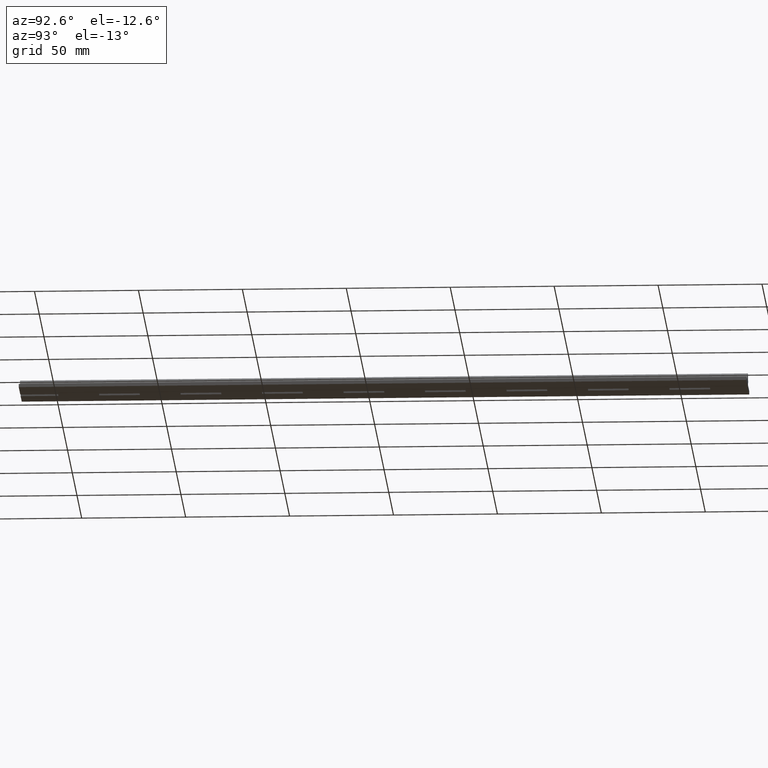
[diagram: clean part render]
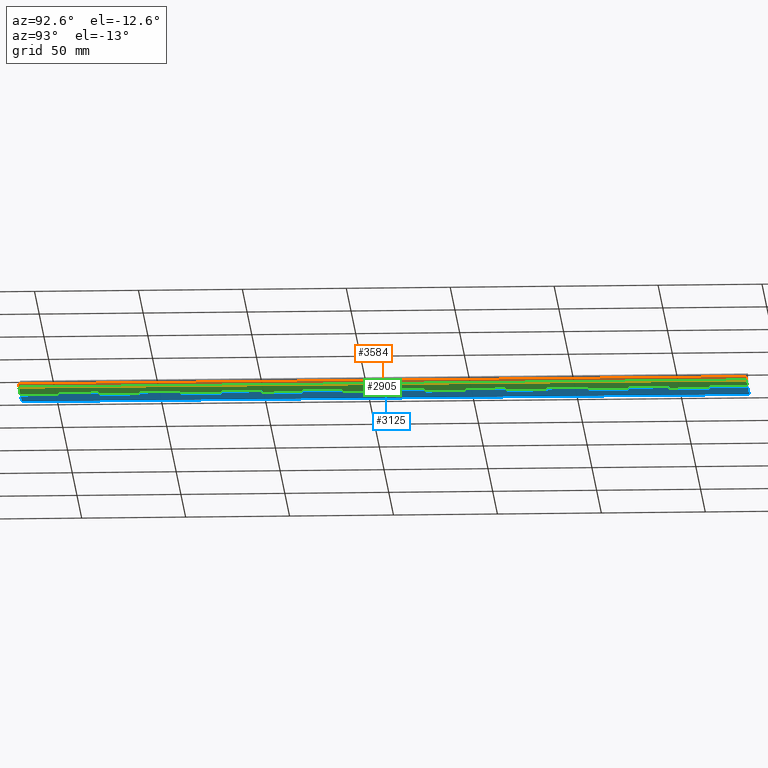
[diagram: same view with three faces highlighted in distinct colors, each labeled with its STEP entity id]
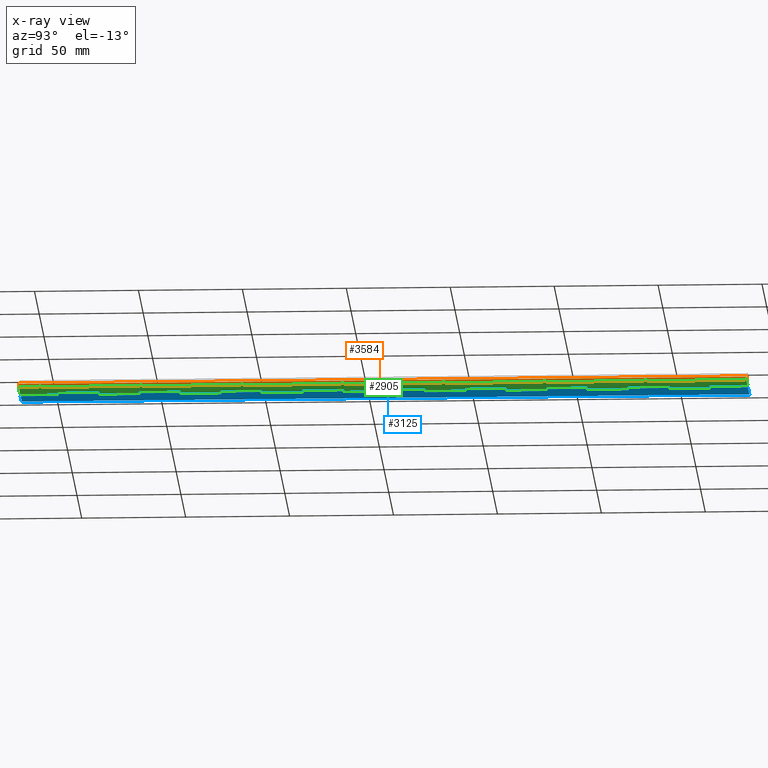
[diagram: x-ray of the same camera — body ghosted, the three highlighted faces saturated]
A machine part, auxiliary view with three faces highlighted in distinct colors.
The next image is the same camera in x-ray (body ghosted, the three faces saturated) — at least one of them is partly hidden behind the body in this view.
Their STEP definitions:

[orange] entity #3584 — the highlighted planar face has unit normal (-1, 0, 0).
#44 = EDGE_LOOP ( 'NONE', ( #2605, #1725, #3276, #336 ) ) ;
#128 = CARTESIAN_POINT ( 'NONE',  ( 16.00000000000000000, -18.19999999999999900, -1.750002187502757400 ) ) ;
#287 = VERTEX_POINT ( 'NONE', #128 ) ;
#336 = ORIENTED_EDGE ( 'NONE', *, *, #1568, .F. ) ;
#420 = CARTESIAN_POINT ( 'NONE',  ( 16.00000000000000000, 313.6000000000000200, -1.750002187502757400 ) ) ;
#567 = LINE ( 'NONE', #627, #1544 ) ;
#627 = CARTESIAN_POINT ( 'NONE',  ( 16.00000000000000000, -18.19999999999999900, -3.350002187502757700 ) ) ;
#699 = VERTEX_POINT ( 'NONE', #920 ) ;
#727 = CARTESIAN_POINT ( 'NONE',  ( 16.00000000000000000, 331.8000000000000100, -1.750002187502757400 ) ) ;
#859 = VERTEX_POINT ( 'NONE', #3203 ) ;
#920 = CARTESIAN_POINT ( 'NONE',  ( 16.00000000000000000, 331.8000000000000100, -1.750002187502757400 ) ) ;
#1122 = VECTOR ( 'NONE', #2980, 1000.000000000000000 ) ;
#1220 = LINE ( 'NONE', #420, #1122 ) ;
#1230 = DIRECTION ( 'NONE',  ( 0.0000000000000000000, 0.0000000000000000000, -1.000000000000000000 ) ) ;
#1247 = PLANE ( 'NONE',  #3943 ) ;
#1544 = VECTOR ( 'NONE', #2262, 1000.000000000000000 ) ;
#1568 = EDGE_CURVE ( 'NONE', #699, #3604, #2170, .T. ) ;
#1603 = CARTESIAN_POINT ( 'NONE',  ( 16.00000000000000000, 331.8000000000000100, -3.350002187502757700 ) ) ;
#1725 = ORIENTED_EDGE ( 'NONE', *, *, #2575, .F. ) ;
#1861 = EDGE_CURVE ( 'NONE', #3604, #859, #2108, .T. ) ;
#1903 = DIRECTION ( 'NONE',  ( -1.000000000000000000, 0.0000000000000000000, 0.0000000000000000000 ) ) ;
#2034 = FACE_OUTER_BOUND ( 'NONE', #44, .T. ) ;
#2059 = CARTESIAN_POINT ( 'NONE',  ( 16.00000000000000000, 313.6000000000000200, -3.350002187502757700 ) ) ;
#2108 = LINE ( 'NONE', #2059, #3531 ) ;
#2170 = LINE ( 'NONE', #727, #2884 ) ;
#2262 = DIRECTION ( 'NONE',  ( 0.0000000000000000000, 0.0000000000000000000, 1.000000000000000000 ) ) ;
#2575 = EDGE_CURVE ( 'NONE', #859, #287, #567, .T. ) ;
#2605 = ORIENTED_EDGE ( 'NONE', *, *, #3069, .T. ) ;
#2884 = VECTOR ( 'NONE', #1230, 1000.000000000000000 ) ;
#2980 = DIRECTION ( 'NONE',  ( -0.0000000000000000000, -1.000000000000000000, -0.0000000000000000000 ) ) ;
#3069 = EDGE_CURVE ( 'NONE', #699, #287, #1220, .T. ) ;
#3203 = CARTESIAN_POINT ( 'NONE',  ( 16.00000000000000000, -18.19999999999999900, -3.350002187502757700 ) ) ;
#3276 = ORIENTED_EDGE ( 'NONE', *, *, #1861, .F. ) ;
#3287 = DIRECTION ( 'NONE',  ( -0.0000000000000000000, -1.000000000000000000, -0.0000000000000000000 ) ) ;
#3531 = VECTOR ( 'NONE', #3287, 1000.000000000000000 ) ;
#3584 = ADVANCED_FACE ( 'NONE', ( #2034 ), #1247, .F. ) ;
#3604 = VERTEX_POINT ( 'NONE', #1603 ) ;
#3749 = CARTESIAN_POINT ( 'NONE',  ( 16.00000000000000000, 313.6000000000000200, -1.750002187502757400 ) ) ;
#3943 = AXIS2_PLACEMENT_3D ( 'NONE', #3749, #1903, #4062 ) ;
#4062 = DIRECTION ( 'NONE',  ( 0.0000000000000000000, 0.0000000000000000000, 1.000000000000000000 ) ) ;

[blue] entity #3125 — the highlighted planar face has unit normal (0, 0, 1).
#18 = EDGE_CURVE ( 'NONE', #2229, #3153, #1921, .T. ) ;
#24 = CARTESIAN_POINT ( 'NONE',  ( -3.999999824594461900, 313.6000000000000200, -3.350000000000000500 ) ) ;
#53 = ORIENTED_EDGE ( 'NONE', *, *, #475, .T. ) ;
#72 = EDGE_CURVE ( 'NONE', #767, #2229, #1720, .T. ) ;
#91 = CARTESIAN_POINT ( 'NONE',  ( -15.99999982459446300, 39.20000000000001000, -3.350000000000000500 ) ) ;
#94 = EDGE_CURVE ( 'NONE', #2302, #767, #3174, .T. ) ;
#124 = EDGE_CURVE ( 'NONE', #1674, #619, #641, .T. ) ;
#125 = DIRECTION ( 'NONE',  ( 1.000000000000000000, 0.0000000000000000000, 0.0000000000000000000 ) ) ;
#136 = CARTESIAN_POINT ( 'NONE',  ( 0.0000000000000000000, 313.6000000000000200, -3.350000000000000500 ) ) ;
#144 = DIRECTION ( 'NONE',  ( 1.000000000000000000, 0.0000000000000000000, -0.0000000000000000000 ) ) ;
#161 = VERTEX_POINT ( 'NONE', #839 ) ;
#198 = ORIENTED_EDGE ( 'NONE', *, *, #1257, .T. ) ;
#212 = VECTOR ( 'NONE', #3172, 1000.000000000000000 ) ;
#220 = CARTESIAN_POINT ( 'NONE',  ( -3.999999824594459200, 137.2000000000000200, -3.350000000000000500 ) ) ;
#262 = CARTESIAN_POINT ( 'NONE',  ( -3.999999824594459200, 98.00000000000001400, -3.350000000000000500 ) ) ;
#291 = CARTESIAN_POINT ( 'NONE',  ( -3.999999824594461900, 78.40000000000000600, -3.350000000000000500 ) ) ;
#294 = ORIENTED_EDGE ( 'NONE', *, *, #1205, .T. ) ;
#309 = VERTEX_POINT ( 'NONE', #2347 ) ;
#322 = VECTOR ( 'NONE', #682, 1000.000000000000000 ) ;
#324 = DIRECTION ( 'NONE',  ( 1.000000000000000000, 0.0000000000000000000, 0.0000000000000000000 ) ) ;
#345 = CARTESIAN_POINT ( 'NONE',  ( -15.99999982459446300, 196.0000000000000300, -3.350000000000000500 ) ) ;
#348 = EDGE_CURVE ( 'NONE', #2533, #1008, #594, .T. ) ;
#353 = DIRECTION ( 'NONE',  ( -1.000000000000000000, -0.0000000000000000000, 0.0000000000000000000 ) ) ;
#377 = DIRECTION ( 'NONE',  ( -0.0000000000000000000, -1.000000000000000000, -0.0000000000000000000 ) ) ;
#414 = DIRECTION ( 'NONE',  ( 1.000000000000000000, 0.0000000000000000000, 0.0000000000000000000 ) ) ;
#415 = EDGE_CURVE ( 'NONE', #1674, #3501, #2850, .T. ) ;
#421 = CARTESIAN_POINT ( 'NONE',  ( 0.0000000000000000000, 274.4000000000000300, -3.350000000000000500 ) ) ;
#428 = CARTESIAN_POINT ( 'NONE',  ( 0.0000000000000000000, 313.6000000000000200, -3.350000000000000500 ) ) ;
#442 = CARTESIAN_POINT ( 'NONE',  ( -3.999999824594459200, 98.00000000000001400, -3.350000000000000500 ) ) ;
#464 = VERTEX_POINT ( 'NONE', #586 ) ;
#475 = EDGE_CURVE ( 'NONE', #161, #2455, #1051, .T. ) ;
#498 = CARTESIAN_POINT ( 'NONE',  ( 0.0000000000000000000, 117.6000000000000100, -3.350000000000000500 ) ) ;
#512 = DIRECTION ( 'NONE',  ( 1.000000000000000000, 0.0000000000000000000, 0.0000000000000000000 ) ) ;
#516 = VERTEX_POINT ( 'NONE', #3095 ) ;
#522 = CARTESIAN_POINT ( 'NONE',  ( -15.99999982459446300, -18.19999999999999900, -3.350000000000000500 ) ) ;
#539 = LINE ( 'NONE', #2660, #2984 ) ;
#559 = VECTOR ( 'NONE', #1350, 1000.000000000000000 ) ;
#571 = LINE ( 'NONE', #3731, #2202 ) ;
#585 = LINE ( 'NONE', #1557, #3037 ) ;
#586 = CARTESIAN_POINT ( 'NONE',  ( -3.999999824594461900, 235.2000000000000500, -3.350000000000000500 ) ) ;
#587 = DIRECTION ( 'NONE',  ( -1.000000000000000000, 0.0000000000000000000, 0.0000000000000000000 ) ) ;
#590 = VECTOR ( 'NONE', #1899, 1000.000000000000000 ) ;
#594 = LINE ( 'NONE', #2547, #686 ) ;
#619 = VERTEX_POINT ( 'NONE', #1164 ) ;
#625 = ORIENTED_EDGE ( 'NONE', *, *, #3747, .T. ) ;
#641 = LINE ( 'NONE', #763, #1620 ) ;
#652 = VERTEX_POINT ( 'NONE', #2111 ) ;
#666 = VERTEX_POINT ( 'NONE', #2403 ) ;
#680 = VECTOR ( 'NONE', #1390, 1000.000000000000000 ) ;
#682 = DIRECTION ( 'NONE',  ( -0.0000000000000000000, -1.000000000000000000, -0.0000000000000000000 ) ) ;
#686 = VECTOR ( 'NONE', #125, 1000.000000000000000 ) ;
#726 = VERTEX_POINT ( 'NONE', #2880 ) ;
#763 = CARTESIAN_POINT ( 'NONE',  ( 2.051283388571816900E-016, 331.8000000000000100, -3.350000000000000500 ) ) ;
#767 = VERTEX_POINT ( 'NONE', #975 ) ;
#768 = VECTOR ( 'NONE', #2541, 1000.000000000000000 ) ;
#813 = CARTESIAN_POINT ( 'NONE',  ( 0.0000000000000000000, 313.6000000000000200, -3.350000000000000500 ) ) ;
#820 = CARTESIAN_POINT ( 'NONE',  ( -3.999999824594461900, 78.40000000000000600, -3.350000000000000500 ) ) ;
#832 = EDGE_CURVE ( 'NONE', #4020, #2302, #2415, .T. ) ;
#835 = CARTESIAN_POINT ( 'NONE',  ( 0.0000000000000000000, 215.6000000000000500, -3.350000000000000500 ) ) ;
#839 = CARTESIAN_POINT ( 'NONE',  ( -3.999999824594461900, 196.0000000000000300, -3.350000000000000500 ) ) ;
#857 = EDGE_CURVE ( 'NONE', #3269, #3537, #3039, .T. ) ;
#881 = EDGE_CURVE ( 'NONE', #652, #2533, #3836, .T. ) ;
#895 = LINE ( 'NONE', #813, #2410 ) ;
#907 = EDGE_CURVE ( 'NONE', #1619, #3700, #1354, .T. ) ;
#940 = EDGE_CURVE ( 'NONE', #1008, #2629, #1154, .T. ) ;
#960 = ORIENTED_EDGE ( 'NONE', *, *, #3822, .T. ) ;
#975 = CARTESIAN_POINT ( 'NONE',  ( 0.0000000000000000000, 98.00000000000002800, -3.350000000000000500 ) ) ;
#1008 = VERTEX_POINT ( 'NONE', #3043 ) ;
#1020 = EDGE_CURVE ( 'NONE', #3501, #1790, #539, .T. ) ;
#1049 = DIRECTION ( 'NONE',  ( -0.0000000000000000000, -1.000000000000000000, -0.0000000000000000000 ) ) ;
#1051 = LINE ( 'NONE', #3723, #3551 ) ;
#1054 = CARTESIAN_POINT ( 'NONE',  ( -3.999999824594461900, 117.6000000000000100, -3.350000000000000500 ) ) ;
#1065 = VECTOR ( 'NONE', #3774, 1000.000000000000000 ) ;
#1069 = DIRECTION ( 'NONE',  ( 1.000000000000000000, 0.0000000000000000000, 0.0000000000000000000 ) ) ;
#1070 = ORIENTED_EDGE ( 'NONE', *, *, #1811, .F. ) ;
#1072 = EDGE_CURVE ( 'NONE', #619, #2445, #2071, .T. ) ;
#1073 = LINE ( 'NONE', #2172, #4016 ) ;
#1112 = ORIENTED_EDGE ( 'NONE', *, *, #1341, .T. ) ;
#1114 = LINE ( 'NONE', #2126, #2721 ) ;
#1118 = ORIENTED_EDGE ( 'NONE', *, *, #1209, .T. ) ;
#1150 = LINE ( 'NONE', #2924, #2752 ) ;
#1154 = LINE ( 'NONE', #136, #2754 ) ;
#1164 = CARTESIAN_POINT ( 'NONE',  ( -15.99999982459446300, 331.8000000000000100, -3.350000000000000500 ) ) ;
#1205 = EDGE_CURVE ( 'NONE', #3700, #161, #2508, .T. ) ;
#1209 = EDGE_CURVE ( 'NONE', #1746, #1847, #895, .T. ) ;
#1217 = DIRECTION ( 'NONE',  ( 1.327594496921025700E-016, -1.000000000000000000, 0.0000000000000000000 ) ) ;
#1233 = CARTESIAN_POINT ( 'NONE',  ( -3.999999824594459200, 294.0000000000000600, -3.350000000000000500 ) ) ;
#1235 = VECTOR ( 'NONE', #3578, 1000.000000000000000 ) ;
#1250 = VECTOR ( 'NONE', #3901, 1000.000000000000000 ) ;
#1251 = VECTOR ( 'NONE', #4039, 1000.000000000000000 ) ;
#1257 = EDGE_CURVE ( 'NONE', #1543, #3269, #585, .T. ) ;
#1261 = ORIENTED_EDGE ( 'NONE', *, *, #907, .T. ) ;
#1262 = ORIENTED_EDGE ( 'NONE', *, *, #415, .T. ) ;
#1264 = LINE ( 'NONE', #3255, #3673 ) ;
#1289 = ORIENTED_EDGE ( 'NONE', *, *, #72, .T. ) ;
#1334 = LINE ( 'NONE', #2666, #2205 ) ;
#1341 = EDGE_CURVE ( 'NONE', #1978, #4020, #1150, .T. ) ;
#1350 = DIRECTION ( 'NONE',  ( 1.000000000000000000, 0.0000000000000000000, 0.0000000000000000000 ) ) ;
#1354 = LINE ( 'NONE', #3527, #1250 ) ;
#1362 = CARTESIAN_POINT ( 'NONE',  ( -3.999999824594461900, 117.6000000000000100, -3.350000000000000500 ) ) ;
#1390 = DIRECTION ( 'NONE',  ( 1.327594496921025700E-016, -1.000000000000000000, 0.0000000000000000000 ) ) ;
#1399 = DIRECTION ( 'NONE',  ( -1.000000000000000000, -0.0000000000000000000, 0.0000000000000000000 ) ) ;
#1423 = LINE ( 'NONE', #3495, #2996 ) ;
#1429 = LINE ( 'NONE', #3823, #559 ) ;
#1435 = CARTESIAN_POINT ( 'NONE',  ( -3.999999824594459200, 58.80000000000000400, -3.350000000000000500 ) ) ;
#1447 = VECTOR ( 'NONE', #2210, 1000.000000000000000 ) ;
#1452 = PLANE ( 'NONE',  #3881 ) ;
#1480 = ORIENTED_EDGE ( 'NONE', *, *, #857, .T. ) ;
#1483 = ORIENTED_EDGE ( 'NONE', *, *, #2863, .T. ) ;
#1495 = VECTOR ( 'NONE', #1733, 1000.000000000000000 ) ;
#1527 = ORIENTED_EDGE ( 'NONE', *, *, #1813, .T. ) ;
#1534 = CARTESIAN_POINT ( 'NONE',  ( 0.0000000000000000000, 313.6000000000000200, -3.350000000000000500 ) ) ;
#1543 = VERTEX_POINT ( 'NONE', #1988 ) ;
#1552 = ORIENTED_EDGE ( 'NONE', *, *, #2168, .T. ) ;
#1557 = CARTESIAN_POINT ( 'NONE',  ( 0.0000000000000000000, 313.6000000000000200, -3.350000000000000500 ) ) ;
#1559 = CARTESIAN_POINT ( 'NONE',  ( -3.999999824594459200, 176.4000000000000300, -3.350000000000000500 ) ) ;
#1560 = CARTESIAN_POINT ( 'NONE',  ( 0.0000000000000000000, 313.6000000000000200, -3.350000000000000500 ) ) ;
#1604 = VERTEX_POINT ( 'NONE', #1233 ) ;
#1619 = VERTEX_POINT ( 'NONE', #835 ) ;
#1620 = VECTOR ( 'NONE', #587, 1000.000000000000000 ) ;
#1628 = ORIENTED_EDGE ( 'NONE', *, *, #3406, .T. ) ;
#1646 = EDGE_CURVE ( 'NONE', #2295, #1882, #3402, .T. ) ;
#1674 = VERTEX_POINT ( 'NONE', #2074 ) ;
#1677 = DIRECTION ( 'NONE',  ( 1.327594496921025700E-016, -1.000000000000000000, 0.0000000000000000000 ) ) ;
#1720 = LINE ( 'NONE', #428, #2468 ) ;
#1732 = VECTOR ( 'NONE', #324, 1000.000000000000000 ) ;
#1733 = DIRECTION ( 'NONE',  ( 1.000000000000000000, 0.0000000000000000000, 0.0000000000000000000 ) ) ;
#1743 = VERTEX_POINT ( 'NONE', #2466 ) ;
#1746 = VERTEX_POINT ( 'NONE', #2486 ) ;
#1751 = CARTESIAN_POINT ( 'NONE',  ( -3.999999824594459200, 137.2000000000000200, -3.350000000000000500 ) ) ;
#1763 = VECTOR ( 'NONE', #414, 1000.000000000000000 ) ;
#1767 = CARTESIAN_POINT ( 'NONE',  ( -15.99999982459446300, 313.6000000000000200, -3.350000000000000500 ) ) ;
#1775 = ORIENTED_EDGE ( 'NONE', *, *, #2789, .T. ) ;
#1790 = VERTEX_POINT ( 'NONE', #24 ) ;
#1811 = EDGE_CURVE ( 'NONE', #2445, #1743, #1334, .T. ) ;
#1813 = EDGE_CURVE ( 'NONE', #1790, #1604, #2922, .T. ) ;
#1824 = VECTOR ( 'NONE', #3630, 1000.000000000000000 ) ;
#1838 = EDGE_CURVE ( 'NONE', #1847, #652, #3023, .T. ) ;
#1841 = ORIENTED_EDGE ( 'NONE', *, *, #1838, .T. ) ;
#1847 = VERTEX_POINT ( 'NONE', #421 ) ;
#1854 = VERTEX_POINT ( 'NONE', #2684 ) ;
#1881 = ORIENTED_EDGE ( 'NONE', *, *, #1646, .T. ) ;
#1882 = VERTEX_POINT ( 'NONE', #2981 ) ;
#1888 = VERTEX_POINT ( 'NONE', #1435 ) ;
#1899 = DIRECTION ( 'NONE',  ( 1.327594496921025700E-016, -1.000000000000000000, 0.0000000000000000000 ) ) ;
#1921 = LINE ( 'NONE', #2733, #1824 ) ;
#1940 = CARTESIAN_POINT ( 'NONE',  ( -15.99999982459446300, 156.8000000000000100, -3.350000000000000500 ) ) ;
#1968 = DIRECTION ( 'NONE',  ( -1.000000000000000000, -0.0000000000000000000, 0.0000000000000000000 ) ) ;
#1978 = VERTEX_POINT ( 'NONE', #498 ) ;
#1988 = CARTESIAN_POINT ( 'NONE',  ( 0.0000000000000000000, 58.80000000000001800, -3.350000000000000500 ) ) ;
#1995 = ORIENTED_EDGE ( 'NONE', *, *, #3895, .T. ) ;
#2030 = ORIENTED_EDGE ( 'NONE', *, *, #1072, .F. ) ;
#2047 = LINE ( 'NONE', #2257, #212 ) ;
#2060 = EDGE_LOOP ( 'NONE', ( #1262, #2437, #1527, #1775, #1118, #1841, #3687, #3474, #3601, #625, #1483, #1552, #1261, #294, #53, #2558, #4044, #3675, #3387, #1881, #3008, #1112, #2394, #3755, #1289, #2525, #960, #2816, #198, #1480, #2338, #1995, #2524, #1628, #3795, #1070, #2030, #2123 ) ) ;
#2071 = LINE ( 'NONE', #2994, #322 ) ;
#2074 = CARTESIAN_POINT ( 'NONE',  ( 4.102566777143633800E-016, 331.8000000000000100, -3.350000000000000500 ) ) ;
#2103 = DIRECTION ( 'NONE',  ( 0.0000000000000000000, 0.0000000000000000000, 1.000000000000000000 ) ) ;
#2105 = VECTOR ( 'NONE', #1677, 1000.000000000000000 ) ;
#2111 = CARTESIAN_POINT ( 'NONE',  ( -3.999999824594461900, 274.4000000000000300, -3.350000000000000500 ) ) ;
#2116 = EDGE_CURVE ( 'NONE', #516, #3842, #3109, .T. ) ;
#2123 = ORIENTED_EDGE ( 'NONE', *, *, #124, .F. ) ;
#2126 = CARTESIAN_POINT ( 'NONE',  ( -3.999999824594463700, 0.0000000000000000000, -3.350000000000000500 ) ) ;
#2146 = EDGE_CURVE ( 'NONE', #726, #1854, #571, .T. ) ;
#2158 = DIRECTION ( 'NONE',  ( -0.0000000000000000000, -1.000000000000000000, -0.0000000000000000000 ) ) ;
#2162 = CARTESIAN_POINT ( 'NONE',  ( -3.999999824594459200, 176.4000000000000300, -3.350000000000000500 ) ) ;
#2167 = EDGE_CURVE ( 'NONE', #309, #2295, #2918, .T. ) ;
#2168 = EDGE_CURVE ( 'NONE', #3477, #1619, #3020, .T. ) ;
#2172 = CARTESIAN_POINT ( 'NONE',  ( -3.999999824594463700, 0.0000000000000000000, -3.350000000000000500 ) ) ;
#2177 = DIRECTION ( 'NONE',  ( -1.000000000000000000, -0.0000000000000000000, 0.0000000000000000000 ) ) ;
#2202 = VECTOR ( 'NONE', #2219, 1000.000000000000000 ) ;
#2205 = VECTOR ( 'NONE', #1069, 1000.000000000000000 ) ;
#2210 = DIRECTION ( 'NONE',  ( -0.0000000000000000000, -1.000000000000000000, -0.0000000000000000000 ) ) ;
#2212 = CARTESIAN_POINT ( 'NONE',  ( 0.0000000000000000000, 313.6000000000000200, -3.350000000000000500 ) ) ;
#2219 = DIRECTION ( 'NONE',  ( -0.0000000000000000000, -1.000000000000000000, -0.0000000000000000000 ) ) ;
#2220 = VECTOR ( 'NONE', #3744, 1000.000000000000000 ) ;
#2225 = CARTESIAN_POINT ( 'NONE',  ( -3.999999824594461900, 39.20000000000000300, -3.350000000000000500 ) ) ;
#2229 = VERTEX_POINT ( 'NONE', #2648 ) ;
#2237 = LINE ( 'NONE', #3272, #1495 ) ;
#2257 = CARTESIAN_POINT ( 'NONE',  ( -3.999999824594461900, 235.2000000000000500, -3.350000000000000500 ) ) ;
#2295 = VERTEX_POINT ( 'NONE', #1751 ) ;
#2302 = VERTEX_POINT ( 'NONE', #442 ) ;
#2313 = DIRECTION ( 'NONE',  ( 1.000000000000000000, 0.0000000000000000000, 0.0000000000000000000 ) ) ;
#2338 = ORIENTED_EDGE ( 'NONE', *, *, #2505, .T. ) ;
#2347 = CARTESIAN_POINT ( 'NONE',  ( -3.999999824594461900, 156.8000000000000100, -3.350000000000000500 ) ) ;
#2364 = CARTESIAN_POINT ( 'NONE',  ( 0.0000000000000000000, 39.20000000000000300, -3.350000000000000500 ) ) ;
#2371 = VECTOR ( 'NONE', #512, 1000.000000000000000 ) ;
#2394 = ORIENTED_EDGE ( 'NONE', *, *, #832, .T. ) ;
#2403 = CARTESIAN_POINT ( 'NONE',  ( -3.999999824594459200, 19.60000000000000100, -3.350000000000000500 ) ) ;
#2410 = VECTOR ( 'NONE', #2158, 1000.000000000000000 ) ;
#2415 = LINE ( 'NONE', #1054, #680 ) ;
#2437 = ORIENTED_EDGE ( 'NONE', *, *, #1020, .T. ) ;
#2441 = DIRECTION ( 'NONE',  ( -1.000000000000000000, -0.0000000000000000000, -0.0000000000000000000 ) ) ;
#2445 = VERTEX_POINT ( 'NONE', #522 ) ;
#2449 = VERTEX_POINT ( 'NONE', #3361 ) ;
#2455 = VERTEX_POINT ( 'NONE', #2162 ) ;
#2466 = CARTESIAN_POINT ( 'NONE',  ( -3.999999824594460100, -18.19999999999999900, -3.350000000000000500 ) ) ;
#2468 = VECTOR ( 'NONE', #377, 1000.000000000000000 ) ;
#2486 = CARTESIAN_POINT ( 'NONE',  ( 0.0000000000000000000, 294.0000000000000600, -3.350000000000000500 ) ) ;
#2505 = EDGE_CURVE ( 'NONE', #3537, #666, #3291, .T. ) ;
#2508 = LINE ( 'NONE', #345, #4034 ) ;
#2514 = DIRECTION ( 'NONE',  ( 1.000000000000000000, 0.0000000000000000000, 0.0000000000000000000 ) ) ;
#2524 = ORIENTED_EDGE ( 'NONE', *, *, #2146, .T. ) ;
#2525 = ORIENTED_EDGE ( 'NONE', *, *, #18, .T. ) ;
#2530 = EDGE_CURVE ( 'NONE', #2449, #1743, #1073, .T. ) ;
#2533 = VERTEX_POINT ( 'NONE', #2845 ) ;
#2541 = DIRECTION ( 'NONE',  ( 1.327594496921025700E-016, -1.000000000000000000, 0.0000000000000000000 ) ) ;
#2547 = CARTESIAN_POINT ( 'NONE',  ( -3.999999824594459200, 254.8000000000000400, -3.350000000000000500 ) ) ;
#2558 = ORIENTED_EDGE ( 'NONE', *, *, #3534, .T. ) ;
#2569 = LINE ( 'NONE', #2590, #1732 ) ;
#2590 = CARTESIAN_POINT ( 'NONE',  ( -3.999999824594459200, 19.60000000000000100, -3.350000000000000500 ) ) ;
#2595 = DIRECTION ( 'NONE',  ( -0.0000000000000000000, -1.000000000000000000, -0.0000000000000000000 ) ) ;
#2629 = VERTEX_POINT ( 'NONE', #3204 ) ;
#2648 = CARTESIAN_POINT ( 'NONE',  ( 0.0000000000000000000, 78.40000000000000600, -3.350000000000000500 ) ) ;
#2660 = CARTESIAN_POINT ( 'NONE',  ( -15.99999982459446300, 313.6000000000000200, -3.350000000000000500 ) ) ;
#2666 = CARTESIAN_POINT ( 'NONE',  ( -15.99999982459446300, -18.19999999999999900, -3.350000000000000500 ) ) ;
#2684 = CARTESIAN_POINT ( 'NONE',  ( 0.0000000000000000000, 0.0000000000000000000, -3.350000000000000500 ) ) ;
#2721 = VECTOR ( 'NONE', #2441, 1000.000000000000000 ) ;
#2733 = CARTESIAN_POINT ( 'NONE',  ( -15.99999982459446300, 78.40000000000002000, -3.350000000000000500 ) ) ;
#2752 = VECTOR ( 'NONE', #1968, 1000.000000000000000 ) ;
#2754 = VECTOR ( 'NONE', #2595, 1000.000000000000000 ) ;
#2778 = LINE ( 'NONE', #1940, #3569 ) ;
#2784 = CARTESIAN_POINT ( 'NONE',  ( -3.999999824594459200, 215.6000000000000500, -3.350000000000000500 ) ) ;
#2789 = EDGE_CURVE ( 'NONE', #1604, #1746, #2237, .T. ) ;
#2816 = ORIENTED_EDGE ( 'NONE', *, *, #3972, .T. ) ;
#2845 = CARTESIAN_POINT ( 'NONE',  ( -3.999999824594459200, 254.8000000000000400, -3.350000000000000500 ) ) ;
#2850 = LINE ( 'NONE', #2212, #1251 ) ;
#2859 = EDGE_CURVE ( 'NONE', #3842, #309, #2778, .T. ) ;
#2863 = EDGE_CURVE ( 'NONE', #464, #3477, #2047, .T. ) ;
#2876 = CARTESIAN_POINT ( 'NONE',  ( 0.0000000000000000000, 156.8000000000000100, -3.350000000000000500 ) ) ;
#2878 = DIRECTION ( 'NONE',  ( -1.000000000000000000, -0.0000000000000000000, 0.0000000000000000000 ) ) ;
#2880 = CARTESIAN_POINT ( 'NONE',  ( 0.0000000000000000000, 19.60000000000000500, -3.350000000000000500 ) ) ;
#2918 = LINE ( 'NONE', #4050, #2105 ) ;
#2922 = LINE ( 'NONE', #3268, #1235 ) ;
#2924 = CARTESIAN_POINT ( 'NONE',  ( -15.99999982459446300, 117.6000000000000100, -3.350000000000000500 ) ) ;
#2950 = VECTOR ( 'NONE', #2514, 1000.000000000000000 ) ;
#2973 = CARTESIAN_POINT ( 'NONE',  ( -3.999999824594461900, 274.4000000000000300, -3.350000000000000500 ) ) ;
#2981 = CARTESIAN_POINT ( 'NONE',  ( 0.0000000000000000000, 137.2000000000000200, -3.350000000000000500 ) ) ;
#2984 = VECTOR ( 'NONE', #3209, 1000.000000000000000 ) ;
#2994 = CARTESIAN_POINT ( 'NONE',  ( -15.99999982459446300, 313.6000000000000200, -3.350000000000000500 ) ) ;
#2996 = VECTOR ( 'NONE', #353, 1000.000000000000000 ) ;
#3008 = ORIENTED_EDGE ( 'NONE', *, *, #3233, .T. ) ;
#3020 = LINE ( 'NONE', #3830, #3727 ) ;
#3023 = LINE ( 'NONE', #3880, #3637 ) ;
#3037 = VECTOR ( 'NONE', #4023, 1000.000000000000000 ) ;
#3039 = LINE ( 'NONE', #91, #2220 ) ;
#3043 = CARTESIAN_POINT ( 'NONE',  ( 0.0000000000000000000, 254.8000000000000400, -3.350000000000000500 ) ) ;
#3095 = CARTESIAN_POINT ( 'NONE',  ( 0.0000000000000000000, 176.4000000000000300, -3.350000000000000500 ) ) ;
#3109 = LINE ( 'NONE', #1560, #1447 ) ;
#3124 = CARTESIAN_POINT ( 'NONE',  ( -3.999999824594461900, 39.20000000000000300, -3.350000000000000500 ) ) ;
#3125 = ADVANCED_FACE ( 'NONE', ( #3231 ), #1452, .F. ) ;
#3153 = VERTEX_POINT ( 'NONE', #820 ) ;
#3172 = DIRECTION ( 'NONE',  ( 1.327594496921025700E-016, -1.000000000000000000, 0.0000000000000000000 ) ) ;
#3174 = LINE ( 'NONE', #262, #2371 ) ;
#3204 = CARTESIAN_POINT ( 'NONE',  ( 0.0000000000000000000, 235.2000000000000500, -3.350000000000000500 ) ) ;
#3209 = DIRECTION ( 'NONE',  ( -1.000000000000000000, -0.0000000000000000000, 0.0000000000000000000 ) ) ;
#3231 = FACE_OUTER_BOUND ( 'NONE', #2060, .T. ) ;
#3233 = EDGE_CURVE ( 'NONE', #1882, #1978, #1264, .T. ) ;
#3255 = CARTESIAN_POINT ( 'NONE',  ( 0.0000000000000000000, 313.6000000000000200, -3.350000000000000500 ) ) ;
#3268 = CARTESIAN_POINT ( 'NONE',  ( -3.999999824594461900, 313.6000000000000200, -3.350000000000000500 ) ) ;
#3269 = VERTEX_POINT ( 'NONE', #2364 ) ;
#3272 = CARTESIAN_POINT ( 'NONE',  ( -3.999999824594459200, 294.0000000000000600, -3.350000000000000500 ) ) ;
#3291 = LINE ( 'NONE', #2225, #768 ) ;
#3361 = CARTESIAN_POINT ( 'NONE',  ( -3.999999824594463700, 0.0000000000000000000, -3.350000000000000500 ) ) ;
#3387 = ORIENTED_EDGE ( 'NONE', *, *, #2167, .T. ) ;
#3402 = LINE ( 'NONE', #220, #1763 ) ;
#3406 = EDGE_CURVE ( 'NONE', #1854, #2449, #1114, .T. ) ;
#3440 = DIRECTION ( 'NONE',  ( 1.906289534040447200E-016, -1.000000000000000000, 0.0000000000000000000 ) ) ;
#3474 = ORIENTED_EDGE ( 'NONE', *, *, #348, .T. ) ;
#3477 = VERTEX_POINT ( 'NONE', #2784 ) ;
#3495 = CARTESIAN_POINT ( 'NONE',  ( -15.99999982459446300, 235.2000000000000500, -3.350000000000000500 ) ) ;
#3501 = VERTEX_POINT ( 'NONE', #1534 ) ;
#3503 = LINE ( 'NONE', #291, #1065 ) ;
#3527 = CARTESIAN_POINT ( 'NONE',  ( 0.0000000000000000000, 313.6000000000000200, -3.350000000000000500 ) ) ;
#3534 = EDGE_CURVE ( 'NONE', #2455, #516, #3756, .T. ) ;
#3537 = VERTEX_POINT ( 'NONE', #3124 ) ;
#3551 = VECTOR ( 'NONE', #1217, 1000.000000000000000 ) ;
#3569 = VECTOR ( 'NONE', #2878, 1000.000000000000000 ) ;
#3578 = DIRECTION ( 'NONE',  ( 1.327594496921025700E-016, -1.000000000000000000, 0.0000000000000000000 ) ) ;
#3601 = ORIENTED_EDGE ( 'NONE', *, *, #940, .T. ) ;
#3630 = DIRECTION ( 'NONE',  ( -1.000000000000000000, -0.0000000000000000000, 0.0000000000000000000 ) ) ;
#3637 = VECTOR ( 'NONE', #1399, 1000.000000000000000 ) ;
#3673 = VECTOR ( 'NONE', #1049, 1000.000000000000000 ) ;
#3675 = ORIENTED_EDGE ( 'NONE', *, *, #2859, .T. ) ;
#3687 = ORIENTED_EDGE ( 'NONE', *, *, #881, .T. ) ;
#3700 = VERTEX_POINT ( 'NONE', #3781 ) ;
#3723 = CARTESIAN_POINT ( 'NONE',  ( -3.999999824594461900, 196.0000000000000300, -3.350000000000000500 ) ) ;
#3727 = VECTOR ( 'NONE', #2313, 1000.000000000000000 ) ;
#3731 = CARTESIAN_POINT ( 'NONE',  ( 0.0000000000000000000, 313.6000000000000200, -3.350000000000000500 ) ) ;
#3744 = DIRECTION ( 'NONE',  ( -1.000000000000000000, -0.0000000000000000000, 0.0000000000000000000 ) ) ;
#3747 = EDGE_CURVE ( 'NONE', #2629, #464, #1423, .T. ) ;
#3755 = ORIENTED_EDGE ( 'NONE', *, *, #94, .T. ) ;
#3756 = LINE ( 'NONE', #1559, #2950 ) ;
#3774 = DIRECTION ( 'NONE',  ( 1.327594496921025700E-016, -1.000000000000000000, 0.0000000000000000000 ) ) ;
#3781 = CARTESIAN_POINT ( 'NONE',  ( 0.0000000000000000000, 196.0000000000000300, -3.350000000000000500 ) ) ;
#3795 = ORIENTED_EDGE ( 'NONE', *, *, #2530, .T. ) ;
#3822 = EDGE_CURVE ( 'NONE', #3153, #1888, #3503, .T. ) ;
#3823 = CARTESIAN_POINT ( 'NONE',  ( -3.999999824594459200, 58.80000000000000400, -3.350000000000000500 ) ) ;
#3830 = CARTESIAN_POINT ( 'NONE',  ( -3.999999824594459200, 215.6000000000000500, -3.350000000000000500 ) ) ;
#3836 = LINE ( 'NONE', #2973, #590 ) ;
#3842 = VERTEX_POINT ( 'NONE', #2876 ) ;
#3880 = CARTESIAN_POINT ( 'NONE',  ( -15.99999982459446300, 274.4000000000000300, -3.350000000000000500 ) ) ;
#3881 = AXIS2_PLACEMENT_3D ( 'NONE', #1767, #2103, #144 ) ;
#3895 = EDGE_CURVE ( 'NONE', #666, #726, #2569, .T. ) ;
#3901 = DIRECTION ( 'NONE',  ( -0.0000000000000000000, -1.000000000000000000, -0.0000000000000000000 ) ) ;
#3972 = EDGE_CURVE ( 'NONE', #1888, #1543, #1429, .T. ) ;
#4016 = VECTOR ( 'NONE', #3440, 1000.000000000000000 ) ;
#4020 = VERTEX_POINT ( 'NONE', #1362 ) ;
#4023 = DIRECTION ( 'NONE',  ( -0.0000000000000000000, -1.000000000000000000, -0.0000000000000000000 ) ) ;
#4034 = VECTOR ( 'NONE', #2177, 1000.000000000000000 ) ;
#4039 = DIRECTION ( 'NONE',  ( -0.0000000000000000000, -1.000000000000000000, -0.0000000000000000000 ) ) ;
#4044 = ORIENTED_EDGE ( 'NONE', *, *, #2116, .T. ) ;
#4050 = CARTESIAN_POINT ( 'NONE',  ( -3.999999824594461900, 156.8000000000000100, -3.350000000000000500 ) ) ;

[green] entity #2905 — the highlighted planar face has unit normal (0, 0, 1).
#10 = EDGE_CURVE ( 'NONE', #215, #1425, #2762, .T. ) ;
#12 = CARTESIAN_POINT ( 'NONE',  ( 4.000000000000000000, 176.4000000000000300, -3.350002187502757700 ) ) ;
#27 = DIRECTION ( 'NONE',  ( 1.000000000000000000, 0.0000000000000000000, -1.084202172485504400E-016 ) ) ;
#30 = LINE ( 'NONE', #1461, #1660 ) ;
#33 = EDGE_CURVE ( 'NONE', #3793, #1883, #3371, .T. ) ;
#40 = VECTOR ( 'NONE', #1565, 1000.000000000000000 ) ;
#60 = CARTESIAN_POINT ( 'NONE',  ( -3.350002187502757700, 176.4000000000000300, -3.350002187502757700 ) ) ;
#83 = DIRECTION ( 'NONE',  ( -1.000000000000000000, -0.0000000000000000000, -0.0000000000000000000 ) ) ;
#88 = VECTOR ( 'NONE', #2497, 1000.000000000000000 ) ;
#132 = LINE ( 'NONE', #789, #3490 ) ;
#137 = CARTESIAN_POINT ( 'NONE',  ( 4.000000000000000000, 137.2000000000000200, -3.350002187502757700 ) ) ;
#147 = CARTESIAN_POINT ( 'NONE',  ( 0.0000000000000000000, 313.6000000000000200, -3.350002187502755900 ) ) ;
#186 = VERTEX_POINT ( 'NONE', #1138 ) ;
#215 = VERTEX_POINT ( 'NONE', #1096 ) ;
#230 = LINE ( 'NONE', #2406, #991 ) ;
#273 = EDGE_CURVE ( 'NONE', #2036, #2094, #3412, .T. ) ;
#280 = LINE ( 'NONE', #901, #379 ) ;
#297 = LINE ( 'NONE', #2043, #2773 ) ;
#312 = DIRECTION ( 'NONE',  ( 1.770125995894701000E-016, 1.000000000000000000, -0.0000000000000000000 ) ) ;
#321 = EDGE_CURVE ( 'NONE', #1727, #3841, #1573, .T. ) ;
#371 = VECTOR ( 'NONE', #3746, 1000.000000000000000 ) ;
#379 = VECTOR ( 'NONE', #2822, 1000.000000000000000 ) ;
#380 = DIRECTION ( 'NONE',  ( 1.000000000000000000, 0.0000000000000000000, -1.084202172485504400E-016 ) ) ;
#390 = ORIENTED_EDGE ( 'NONE', *, *, #4035, .F. ) ;
#404 = DIRECTION ( 'NONE',  ( -1.000000000000000000, -0.0000000000000000000, -0.0000000000000000000 ) ) ;
#413 = CARTESIAN_POINT ( 'NONE',  ( 0.0000000000000000000, 313.6000000000000200, -3.350002187502755900 ) ) ;
#434 = EDGE_CURVE ( 'NONE', #215, #2152, #280, .T. ) ;
#441 = EDGE_CURVE ( 'NONE', #3604, #2779, #2023, .T. ) ;
#451 = CARTESIAN_POINT ( 'NONE',  ( 0.0000000000000000000, 0.0000000000000000000, -3.350002187502757700 ) ) ;
#470 = LINE ( 'NONE', #2110, #3732 ) ;
#483 = DIRECTION ( 'NONE',  ( -0.0000000000000000000, -1.000000000000000000, -0.0000000000000000000 ) ) ;
#486 = DIRECTION ( 'NONE',  ( 1.770125995894701000E-016, 1.000000000000000000, -0.0000000000000000000 ) ) ;
#503 = EDGE_CURVE ( 'NONE', #3329, #2147, #1915, .T. ) ;
#530 = EDGE_CURVE ( 'NONE', #2534, #2779, #1818, .T. ) ;
#550 = ORIENTED_EDGE ( 'NONE', *, *, #1861, .T. ) ;
#621 = DIRECTION ( 'NONE',  ( 1.770125995894701000E-016, 1.000000000000000000, -0.0000000000000000000 ) ) ;
#632 = CARTESIAN_POINT ( 'NONE',  ( 0.0000000000000000000, 98.00000000000001400, -3.350002187502757700 ) ) ;
#659 = LINE ( 'NONE', #3235, #1329 ) ;
#665 = CARTESIAN_POINT ( 'NONE',  ( 3.999999999999996400, 39.20000000000001000, -3.350002187502756400 ) ) ;
#676 = DIRECTION ( 'NONE',  ( 1.770125995894701000E-016, 1.000000000000000000, -0.0000000000000000000 ) ) ;
#707 = ORIENTED_EDGE ( 'NONE', *, *, #2815, .T. ) ;
#711 = LINE ( 'NONE', #2966, #3237 ) ;
#717 = DIRECTION ( 'NONE',  ( -1.000000000000000000, -0.0000000000000000000, -0.0000000000000000000 ) ) ;
#719 = VERTEX_POINT ( 'NONE', #2333 ) ;
#725 = ORIENTED_EDGE ( 'NONE', *, *, #2882, .T. ) ;
#733 = CARTESIAN_POINT ( 'NONE',  ( 3.999999999999996400, 117.6000000000000100, -3.350002187502756400 ) ) ;
#765 = ORIENTED_EDGE ( 'NONE', *, *, #2879, .T. ) ;
#775 = EDGE_CURVE ( 'NONE', #2766, #3793, #1098, .T. ) ;
#778 = CARTESIAN_POINT ( 'NONE',  ( 16.00000000000000000, 235.2000000000000200, -3.350002187502757700 ) ) ;
#781 = EDGE_CURVE ( 'NONE', #3044, #2340, #2512, .T. ) ;
#789 = CARTESIAN_POINT ( 'NONE',  ( 0.0000000000000000000, 313.6000000000000200, -3.350002187502755900 ) ) ;
#798 = VECTOR ( 'NONE', #3759, 1000.000000000000000 ) ;
#822 = VECTOR ( 'NONE', #3622, 1000.000000000000000 ) ;
#823 = ORIENTED_EDGE ( 'NONE', *, *, #781, .T. ) ;
#859 = VERTEX_POINT ( 'NONE', #3203 ) ;
#869 = FACE_OUTER_BOUND ( 'NONE', #1273, .T. ) ;
#901 = CARTESIAN_POINT ( 'NONE',  ( 0.0000000000000000000, 313.6000000000000200, -3.350002187502755900 ) ) ;
#903 = VERTEX_POINT ( 'NONE', #2843 ) ;
#942 = LINE ( 'NONE', #413, #2551 ) ;
#976 = LINE ( 'NONE', #3689, #2581 ) ;
#982 = DIRECTION ( 'NONE',  ( 1.770125995894701000E-016, 1.000000000000000000, -0.0000000000000000000 ) ) ;
#991 = VECTOR ( 'NONE', #4083, 1000.000000000000000 ) ;
#992 = CARTESIAN_POINT ( 'NONE',  ( 16.00000000000000000, 313.6000000000000200, -3.350002187502757700 ) ) ;
#995 = DIRECTION ( 'NONE',  ( -0.0000000000000000000, -1.000000000000000000, -0.0000000000000000000 ) ) ;
#1013 = CARTESIAN_POINT ( 'NONE',  ( -3.350002187502757700, 98.00000000000001400, -3.350002187502757700 ) ) ;
#1025 = VERTEX_POINT ( 'NONE', #1201 ) ;
#1040 = EDGE_CURVE ( 'NONE', #2322, #2534, #2174, .T. ) ;
#1055 = VECTOR ( 'NONE', #2404, 1000.000000000000000 ) ;
#1074 = CARTESIAN_POINT ( 'NONE',  ( 4.000000000000000000, 331.8000000000000100, -3.350002187502757700 ) ) ;
#1082 = ORIENTED_EDGE ( 'NONE', *, *, #33, .T. ) ;
#1096 = CARTESIAN_POINT ( 'NONE',  ( 0.0000000000000000000, 39.20000000000000300, -3.350002187502757700 ) ) ;
#1098 = LINE ( 'NONE', #12, #3320 ) ;
#1133 = EDGE_CURVE ( 'NONE', #2322, #3335, #230, .T. ) ;
#1136 = VERTEX_POINT ( 'NONE', #2591 ) ;
#1138 = CARTESIAN_POINT ( 'NONE',  ( 4.000000000000000000, 294.0000000000000600, -3.350002187502757700 ) ) ;
#1169 = ORIENTED_EDGE ( 'NONE', *, *, #2026, .T. ) ;
#1170 = ORIENTED_EDGE ( 'NONE', *, *, #503, .T. ) ;
#1171 = AXIS2_PLACEMENT_3D ( 'NONE', #992, #2286, #1324 ) ;
#1175 = ORIENTED_EDGE ( 'NONE', *, *, #1133, .F. ) ;
#1176 = VECTOR ( 'NONE', #3777, 1000.000000000000000 ) ;
#1182 = CARTESIAN_POINT ( 'NONE',  ( 0.0000000000000000000, 78.40000000000000600, -3.350002187502757700 ) ) ;
#1186 = ORIENTED_EDGE ( 'NONE', *, *, #321, .T. ) ;
#1201 = CARTESIAN_POINT ( 'NONE',  ( 3.999999999999996400, 196.0000000000000300, -3.350002187502756400 ) ) ;
#1203 = EDGE_CURVE ( 'NONE', #3329, #2180, #30, .T. ) ;
#1216 = LINE ( 'NONE', #2639, #3619 ) ;
#1234 = DIRECTION ( 'NONE',  ( -1.000000000000000000, 0.0000000000000000000, 1.084202172485504400E-016 ) ) ;
#1259 = LINE ( 'NONE', #2825, #3667 ) ;
#1273 = EDGE_LOOP ( 'NONE', ( #3631, #1671, #1693, #550, #390, #1494, #1170, #4058, #2669, #3855, #3013, #2282, #1627, #2088, #1169, #2143, #1186, #3470, #3866, #2475, #3900, #2095, #3062, #3909, #1082, #3181, #1426, #1510, #725, #3705, #707, #1724, #2517, #3484, #823, #765, #1936, #1175 ) ) ;
#1284 = EDGE_CURVE ( 'NONE', #719, #2766, #3831, .T. ) ;
#1288 = EDGE_CURVE ( 'NONE', #3370, #1727, #1353, .T. ) ;
#1290 = EDGE_CURVE ( 'NONE', #2147, #3051, #3743, .T. ) ;
#1324 = DIRECTION ( 'NONE',  ( 1.000000000000000000, 0.0000000000000000000, -1.084202172485504400E-016 ) ) ;
#1329 = VECTOR ( 'NONE', #2627, 1000.000000000000000 ) ;
#1343 = CARTESIAN_POINT ( 'NONE',  ( 0.0000000000000000000, -18.19999999999999900, -3.350002187502755900 ) ) ;
#1344 = DIRECTION ( 'NONE',  ( 1.000000000000000000, 0.0000000000000000000, -1.084202172485504400E-016 ) ) ;
#1353 = LINE ( 'NONE', #2358, #2218 ) ;
#1368 = VERTEX_POINT ( 'NONE', #1697 ) ;
#1380 = LINE ( 'NONE', #778, #3971 ) ;
#1402 = EDGE_CURVE ( 'NONE', #719, #2321, #942, .T. ) ;
#1404 = CARTESIAN_POINT ( 'NONE',  ( 0.0000000000000000000, 254.8000000000000400, -3.350002187502757700 ) ) ;
#1407 = VECTOR ( 'NONE', #3224, 1000.000000000000000 ) ;
#1425 = VERTEX_POINT ( 'NONE', #665 ) ;
#1426 = ORIENTED_EDGE ( 'NONE', *, *, #3651, .T. ) ;
#1456 = DIRECTION ( 'NONE',  ( -0.0000000000000000000, -1.000000000000000000, -0.0000000000000000000 ) ) ;
#1461 = CARTESIAN_POINT ( 'NONE',  ( 0.0000000000000000000, 313.6000000000000200, -3.350002187502755900 ) ) ;
#1463 = LINE ( 'NONE', #3305, #2213 ) ;
#1471 = CARTESIAN_POINT ( 'NONE',  ( 3.999999999999996400, 274.4000000000000300, -3.350002187502756400 ) ) ;
#1494 = ORIENTED_EDGE ( 'NONE', *, *, #1203, .F. ) ;
#1510 = ORIENTED_EDGE ( 'NONE', *, *, #3159, .T. ) ;
#1545 = CARTESIAN_POINT ( 'NONE',  ( -3.350002187502754100, 0.0000000000000000000, -3.350002187502757700 ) ) ;
#1565 = DIRECTION ( 'NONE',  ( -0.0000000000000000000, -1.000000000000000000, -0.0000000000000000000 ) ) ;
#1573 = LINE ( 'NONE', #1013, #3946 ) ;
#1603 = CARTESIAN_POINT ( 'NONE',  ( 16.00000000000000000, 331.8000000000000100, -3.350002187502757700 ) ) ;
#1608 = DIRECTION ( 'NONE',  ( 1.770125995894701000E-016, 1.000000000000000000, -0.0000000000000000000 ) ) ;
#1614 = EDGE_CURVE ( 'NONE', #1136, #3841, #132, .T. ) ;
#1622 = VECTOR ( 'NONE', #27, 1000.000000000000000 ) ;
#1626 = VERTEX_POINT ( 'NONE', #1404 ) ;
#1627 = ORIENTED_EDGE ( 'NONE', *, *, #2741, .T. ) ;
#1637 = VECTOR ( 'NONE', #1608, 1000.000000000000000 ) ;
#1644 = CARTESIAN_POINT ( 'NONE',  ( -3.350002187502757700, 215.6000000000000500, -3.350002187502757700 ) ) ;
#1660 = VECTOR ( 'NONE', #483, 1000.000000000000000 ) ;
#1671 = ORIENTED_EDGE ( 'NONE', *, *, #530, .T. ) ;
#1693 = ORIENTED_EDGE ( 'NONE', *, *, #441, .F. ) ;
#1697 = CARTESIAN_POINT ( 'NONE',  ( 4.000000000000000000, 215.6000000000000500, -3.350002187502757700 ) ) ;
#1708 = EDGE_CURVE ( 'NONE', #2025, #1883, #1463, .T. ) ;
#1723 = VECTOR ( 'NONE', #3454, 1000.000000000000000 ) ;
#1724 = ORIENTED_EDGE ( 'NONE', *, *, #2537, .T. ) ;
#1727 = VERTEX_POINT ( 'NONE', #3887 ) ;
#1736 = CARTESIAN_POINT ( 'NONE',  ( 4.000000000000000000, 19.60000000000000100, -3.350002187502757700 ) ) ;
#1780 = VERTEX_POINT ( 'NONE', #2819 ) ;
#1810 = EDGE_CURVE ( 'NONE', #903, #2321, #470, .T. ) ;
#1818 = LINE ( 'NONE', #2490, #88 ) ;
#1839 = LINE ( 'NONE', #1644, #3383 ) ;
#1861 = EDGE_CURVE ( 'NONE', #3604, #859, #2108, .T. ) ;
#1879 = CARTESIAN_POINT ( 'NONE',  ( 0.0000000000000000000, 235.2000000000000200, -3.350002187502757700 ) ) ;
#1883 = VERTEX_POINT ( 'NONE', #3586 ) ;
#1895 = CARTESIAN_POINT ( 'NONE',  ( 0.0000000000000000000, 19.60000000000000100, -3.350002187502757700 ) ) ;
#1908 = CARTESIAN_POINT ( 'NONE',  ( 3.999999999999996400, 313.6000000000000200, -3.350002187502757700 ) ) ;
#1909 = CARTESIAN_POINT ( 'NONE',  ( 16.00000000000000000, 156.8000000000000100, -3.350002187502757700 ) ) ;
#1915 = LINE ( 'NONE', #1545, #2554 ) ;
#1932 = CARTESIAN_POINT ( 'NONE',  ( 16.00000000000000000, 196.0000000000000300, -3.350002187502757700 ) ) ;
#1936 = ORIENTED_EDGE ( 'NONE', *, *, #2193, .T. ) ;
#1946 = EDGE_CURVE ( 'NONE', #3044, #1626, #3246, .T. ) ;
#1962 = DIRECTION ( 'NONE',  ( -1.000000000000000000, -0.0000000000000000000, -0.0000000000000000000 ) ) ;
#1970 = CARTESIAN_POINT ( 'NONE',  ( 16.00000000000000000, 117.6000000000000100, -3.350002187502757700 ) ) ;
#2018 = CARTESIAN_POINT ( 'NONE',  ( 4.000000000000000000, 176.4000000000000300, -3.350002187502757700 ) ) ;
#2023 = LINE ( 'NONE', #3121, #2756 ) ;
#2025 = VERTEX_POINT ( 'NONE', #3071 ) ;
#2026 = EDGE_CURVE ( 'NONE', #2036, #3370, #976, .T. ) ;
#2031 = CARTESIAN_POINT ( 'NONE',  ( 4.000000000000000000, 254.8000000000000400, -3.350002187502757700 ) ) ;
#2036 = VERTEX_POINT ( 'NONE', #1182 ) ;
#2043 = CARTESIAN_POINT ( 'NONE',  ( -3.350002187502757700, 254.8000000000000400, -3.350002187502757700 ) ) ;
#2057 = CARTESIAN_POINT ( 'NONE',  ( 4.000000000000000000, 19.60000000000000100, -3.350002187502757700 ) ) ;
#2059 = CARTESIAN_POINT ( 'NONE',  ( 16.00000000000000000, 313.6000000000000200, -3.350002187502757700 ) ) ;
#2062 = CARTESIAN_POINT ( 'NONE',  ( 4.000000000000000000, 58.80000000000000400, -3.350002187502757700 ) ) ;
#2088 = ORIENTED_EDGE ( 'NONE', *, *, #273, .F. ) ;
#2094 = VERTEX_POINT ( 'NONE', #3712 ) ;
#2095 = ORIENTED_EDGE ( 'NONE', *, *, #1402, .F. ) ;
#2108 = LINE ( 'NONE', #2059, #3531 ) ;
#2110 = CARTESIAN_POINT ( 'NONE',  ( -3.350002187502757700, 137.2000000000000200, -3.350002187502757700 ) ) ;
#2113 = CARTESIAN_POINT ( 'NONE',  ( 3.999999999999996400, 78.40000000000002000, -3.350002187502756400 ) ) ;
#2141 = VERTEX_POINT ( 'NONE', #1879 ) ;
#2143 = ORIENTED_EDGE ( 'NONE', *, *, #1288, .T. ) ;
#2147 = VERTEX_POINT ( 'NONE', #3740 ) ;
#2152 = VERTEX_POINT ( 'NONE', #1895 ) ;
#2169 = DIRECTION ( 'NONE',  ( 1.000000000000000000, 0.0000000000000000000, -1.084202172485504400E-016 ) ) ;
#2174 = LINE ( 'NONE', #2602, #1407 ) ;
#2180 = VERTEX_POINT ( 'NONE', #1343 ) ;
#2193 = EDGE_CURVE ( 'NONE', #186, #3335, #659, .T. ) ;
#2213 = VECTOR ( 'NONE', #3295, 1000.000000000000000 ) ;
#2218 = VECTOR ( 'NONE', #676, 1000.000000000000000 ) ;
#2282 = ORIENTED_EDGE ( 'NONE', *, *, #3623, .T. ) ;
#2285 = VERTEX_POINT ( 'NONE', #2062 ) ;
#2286 = DIRECTION ( 'NONE',  ( 1.084202172485504400E-016, -0.0000000000000000000, 1.000000000000000000 ) ) ;
#2321 = VERTEX_POINT ( 'NONE', #3318 ) ;
#2322 = VERTEX_POINT ( 'NONE', #3337 ) ;
#2333 = CARTESIAN_POINT ( 'NONE',  ( 0.0000000000000000000, 156.8000000000000100, -3.350002187502757700 ) ) ;
#2340 = VERTEX_POINT ( 'NONE', #1471 ) ;
#2354 = DIRECTION ( 'NONE',  ( -1.000000000000000000, -0.0000000000000000000, -0.0000000000000000000 ) ) ;
#2358 = CARTESIAN_POINT ( 'NONE',  ( 4.000000000000000000, 98.00000000000001400, -3.350002187502757700 ) ) ;
#2391 = LINE ( 'NONE', #3450, #1637 ) ;
#2404 = DIRECTION ( 'NONE',  ( 1.000000000000000000, 0.0000000000000000000, -1.084202172485504400E-016 ) ) ;
#2406 = CARTESIAN_POINT ( 'NONE',  ( 0.0000000000000000000, 313.6000000000000200, -3.350002187502755900 ) ) ;
#2447 = VECTOR ( 'NONE', #2728, 1000.000000000000000 ) ;
#2475 = ORIENTED_EDGE ( 'NONE', *, *, #2839, .T. ) ;
#2490 = CARTESIAN_POINT ( 'NONE',  ( 4.000000000000000000, 333.2000000000000500, -3.350002187502757700 ) ) ;
#2497 = DIRECTION ( 'NONE',  ( 1.770125995894701000E-016, 1.000000000000000000, -0.0000000000000000000 ) ) ;
#2512 = LINE ( 'NONE', #3048, #798 ) ;
#2517 = ORIENTED_EDGE ( 'NONE', *, *, #3261, .T. ) ;
#2531 = LINE ( 'NONE', #3312, #822 ) ;
#2534 = VERTEX_POINT ( 'NONE', #1908 ) ;
#2537 = EDGE_CURVE ( 'NONE', #2852, #2718, #2391, .T. ) ;
#2551 = VECTOR ( 'NONE', #995, 1000.000000000000000 ) ;
#2554 = VECTOR ( 'NONE', #2792, 1000.000000000000000 ) ;
#2568 = CARTESIAN_POINT ( 'NONE',  ( 3.999999999999996400, 235.2000000000000200, -3.350002187502756400 ) ) ;
#2581 = VECTOR ( 'NONE', #2169, 1000.000000000000000 ) ;
#2591 = CARTESIAN_POINT ( 'NONE',  ( 0.0000000000000000000, 117.6000000000000100, -3.350002187502757700 ) ) ;
#2602 = CARTESIAN_POINT ( 'NONE',  ( -3.350002187502754100, 313.6000000000000200, -3.350002187502757700 ) ) ;
#2607 = DIRECTION ( 'NONE',  ( -1.000000000000000000, -0.0000000000000000000, -0.0000000000000000000 ) ) ;
#2627 = DIRECTION ( 'NONE',  ( -1.000000000000000000, -0.0000000000000000000, -0.0000000000000000000 ) ) ;
#2639 = CARTESIAN_POINT ( 'NONE',  ( -6.153854184092820600E-016, -18.19999999999999900, -3.350002187502755900 ) ) ;
#2659 = VECTOR ( 'NONE', #83, 1000.000000000000000 ) ;
#2662 = LINE ( 'NONE', #2865, #3558 ) ;
#2669 = ORIENTED_EDGE ( 'NONE', *, *, #3119, .T. ) ;
#2676 = VECTOR ( 'NONE', #982, 1000.000000000000000 ) ;
#2718 = VERTEX_POINT ( 'NONE', #2031 ) ;
#2728 = DIRECTION ( 'NONE',  ( -0.0000000000000000000, -1.000000000000000000, -0.0000000000000000000 ) ) ;
#2740 = CARTESIAN_POINT ( 'NONE',  ( 4.000000000000000000, 215.6000000000000500, -3.350002187502757700 ) ) ;
#2741 = EDGE_CURVE ( 'NONE', #2285, #2094, #711, .T. ) ;
#2756 = VECTOR ( 'NONE', #1234, 1000.000000000000000 ) ;
#2762 = LINE ( 'NONE', #3634, #1055 ) ;
#2766 = VERTEX_POINT ( 'NONE', #3565 ) ;
#2773 = VECTOR ( 'NONE', #2354, 1000.000000000000000 ) ;
#2779 = VERTEX_POINT ( 'NONE', #1074 ) ;
#2792 = DIRECTION ( 'NONE',  ( 1.000000000000000000, 0.0000000000000000000, 0.0000000000000000000 ) ) ;
#2815 = EDGE_CURVE ( 'NONE', #2141, #2852, #1380, .T. ) ;
#2819 = CARTESIAN_POINT ( 'NONE',  ( 0.0000000000000000000, 215.6000000000000500, -3.350002187502757700 ) ) ;
#2822 = DIRECTION ( 'NONE',  ( -0.0000000000000000000, -1.000000000000000000, -0.0000000000000000000 ) ) ;
#2825 = CARTESIAN_POINT ( 'NONE',  ( 0.0000000000000000000, 313.6000000000000200, -3.350002187502755900 ) ) ;
#2839 = EDGE_CURVE ( 'NONE', #4055, #903, #2868, .T. ) ;
#2843 = CARTESIAN_POINT ( 'NONE',  ( 4.000000000000000000, 137.2000000000000200, -3.350002187502757700 ) ) ;
#2852 = VERTEX_POINT ( 'NONE', #2568 ) ;
#2865 = CARTESIAN_POINT ( 'NONE',  ( 4.000000000000000000, 58.80000000000000400, -3.350002187502757700 ) ) ;
#2868 = LINE ( 'NONE', #137, #1176 ) ;
#2879 = EDGE_CURVE ( 'NONE', #2340, #186, #3471, .T. ) ;
#2882 = EDGE_CURVE ( 'NONE', #1368, #1780, #1839, .T. ) ;
#2902 = PLANE ( 'NONE',  #1171 ) ;
#2905 = ADVANCED_FACE ( 'NONE', ( #869 ), #2902, .F. ) ;
#2936 = VECTOR ( 'NONE', #1344, 1000.000000000000000 ) ;
#2966 = CARTESIAN_POINT ( 'NONE',  ( -3.350002187502757700, 58.80000000000000400, -3.350002187502757700 ) ) ;
#2995 = CARTESIAN_POINT ( 'NONE',  ( 0.0000000000000000000, 294.0000000000000600, -3.350002187502757700 ) ) ;
#3006 = DIRECTION ( 'NONE',  ( 1.000000000000000000, 0.0000000000000000000, -1.084202172485504400E-016 ) ) ;
#3013 = ORIENTED_EDGE ( 'NONE', *, *, #10, .T. ) ;
#3044 = VERTEX_POINT ( 'NONE', #3575 ) ;
#3048 = CARTESIAN_POINT ( 'NONE',  ( 16.00000000000000000, 274.4000000000000300, -3.350002187502757700 ) ) ;
#3051 = VERTEX_POINT ( 'NONE', #2057 ) ;
#3060 = VECTOR ( 'NONE', #486, 1000.000000000000000 ) ;
#3062 = ORIENTED_EDGE ( 'NONE', *, *, #1284, .T. ) ;
#3071 = CARTESIAN_POINT ( 'NONE',  ( 0.0000000000000000000, 196.0000000000000300, -3.350002187502757700 ) ) ;
#3119 = EDGE_CURVE ( 'NONE', #3051, #2152, #2531, .T. ) ;
#3121 = CARTESIAN_POINT ( 'NONE',  ( 16.00000000000000000, 331.8000000000000100, -3.350002187502757700 ) ) ;
#3159 = EDGE_CURVE ( 'NONE', #1025, #1368, #3853, .T. ) ;
#3181 = ORIENTED_EDGE ( 'NONE', *, *, #1708, .F. ) ;
#3195 = CARTESIAN_POINT ( 'NONE',  ( 4.000000000000000000, 294.0000000000000600, -3.350002187502757700 ) ) ;
#3203 = CARTESIAN_POINT ( 'NONE',  ( 16.00000000000000000, -18.19999999999999900, -3.350002187502757700 ) ) ;
#3224 = DIRECTION ( 'NONE',  ( 1.000000000000000000, 0.0000000000000000000, 0.0000000000000000000 ) ) ;
#3235 = CARTESIAN_POINT ( 'NONE',  ( -3.350002187502757700, 294.0000000000000600, -3.350002187502757700 ) ) ;
#3237 = VECTOR ( 'NONE', #717, 1000.000000000000000 ) ;
#3246 = LINE ( 'NONE', #147, #2447 ) ;
#3261 = EDGE_CURVE ( 'NONE', #2718, #1626, #297, .T. ) ;
#3287 = DIRECTION ( 'NONE',  ( -0.0000000000000000000, -1.000000000000000000, -0.0000000000000000000 ) ) ;
#3295 = DIRECTION ( 'NONE',  ( -0.0000000000000000000, -1.000000000000000000, -0.0000000000000000000 ) ) ;
#3296 = CARTESIAN_POINT ( 'NONE',  ( 0.0000000000000000000, 313.6000000000000200, -3.350002187502755900 ) ) ;
#3305 = CARTESIAN_POINT ( 'NONE',  ( 0.0000000000000000000, 313.6000000000000200, -3.350002187502755900 ) ) ;
#3312 = CARTESIAN_POINT ( 'NONE',  ( -3.350002187502757700, 19.60000000000000100, -3.350002187502757700 ) ) ;
#3318 = CARTESIAN_POINT ( 'NONE',  ( 0.0000000000000000000, 137.2000000000000200, -3.350002187502757700 ) ) ;
#3320 = VECTOR ( 'NONE', #312, 1000.000000000000000 ) ;
#3329 = VERTEX_POINT ( 'NONE', #451 ) ;
#3335 = VERTEX_POINT ( 'NONE', #2995 ) ;
#3337 = CARTESIAN_POINT ( 'NONE',  ( 0.0000000000000000000, 313.6000000000000200, -3.350002187502757700 ) ) ;
#3370 = VERTEX_POINT ( 'NONE', #2113 ) ;
#3371 = LINE ( 'NONE', #60, #2659 ) ;
#3383 = VECTOR ( 'NONE', #1962, 1000.000000000000000 ) ;
#3412 = LINE ( 'NONE', #3296, #40 ) ;
#3450 = CARTESIAN_POINT ( 'NONE',  ( 4.000000000000000000, 254.8000000000000400, -3.350002187502757700 ) ) ;
#3454 = DIRECTION ( 'NONE',  ( 1.000000000000000000, 0.0000000000000000000, -1.084202172485504400E-016 ) ) ;
#3456 = LINE ( 'NONE', #1932, #1723 ) ;
#3470 = ORIENTED_EDGE ( 'NONE', *, *, #1614, .F. ) ;
#3471 = LINE ( 'NONE', #3195, #2676 ) ;
#3484 = ORIENTED_EDGE ( 'NONE', *, *, #1946, .F. ) ;
#3490 = VECTOR ( 'NONE', #1456, 1000.000000000000000 ) ;
#3531 = VECTOR ( 'NONE', #3287, 1000.000000000000000 ) ;
#3538 = EDGE_CURVE ( 'NONE', #2141, #1780, #1259, .T. ) ;
#3558 = VECTOR ( 'NONE', #621, 1000.000000000000000 ) ;
#3565 = CARTESIAN_POINT ( 'NONE',  ( 3.999999999999996400, 156.8000000000000100, -3.350002187502756400 ) ) ;
#3575 = CARTESIAN_POINT ( 'NONE',  ( 0.0000000000000000000, 274.4000000000000300, -3.350002187502757700 ) ) ;
#3586 = CARTESIAN_POINT ( 'NONE',  ( 0.0000000000000000000, 176.4000000000000300, -3.350002187502757700 ) ) ;
#3604 = VERTEX_POINT ( 'NONE', #1603 ) ;
#3619 = VECTOR ( 'NONE', #380, 1000.000000000000000 ) ;
#3622 = DIRECTION ( 'NONE',  ( -1.000000000000000000, -0.0000000000000000000, -0.0000000000000000000 ) ) ;
#3623 = EDGE_CURVE ( 'NONE', #1425, #2285, #2662, .T. ) ;
#3631 = ORIENTED_EDGE ( 'NONE', *, *, #1040, .T. ) ;
#3634 = CARTESIAN_POINT ( 'NONE',  ( 16.00000000000000000, 39.20000000000001000, -3.350002187502757700 ) ) ;
#3651 = EDGE_CURVE ( 'NONE', #2025, #1025, #3456, .T. ) ;
#3667 = VECTOR ( 'NONE', #3738, 1000.000000000000000 ) ;
#3689 = CARTESIAN_POINT ( 'NONE',  ( 16.00000000000000000, 78.40000000000002000, -3.350002187502757700 ) ) ;
#3705 = ORIENTED_EDGE ( 'NONE', *, *, #3538, .F. ) ;
#3712 = CARTESIAN_POINT ( 'NONE',  ( 0.0000000000000000000, 58.80000000000000400, -3.350002187502757700 ) ) ;
#3730 = EDGE_CURVE ( 'NONE', #1136, #4055, #3893, .T. ) ;
#3732 = VECTOR ( 'NONE', #404, 1000.000000000000000 ) ;
#3738 = DIRECTION ( 'NONE',  ( -0.0000000000000000000, -1.000000000000000000, -0.0000000000000000000 ) ) ;
#3740 = CARTESIAN_POINT ( 'NONE',  ( 3.999999999999996400, 0.0000000000000000000, -3.350002187502757700 ) ) ;
#3743 = LINE ( 'NONE', #1736, #371 ) ;
#3746 = DIRECTION ( 'NONE',  ( 1.770125995894701000E-016, 1.000000000000000000, -0.0000000000000000000 ) ) ;
#3759 = DIRECTION ( 'NONE',  ( 1.000000000000000000, 0.0000000000000000000, -1.084202172485504400E-016 ) ) ;
#3777 = DIRECTION ( 'NONE',  ( 1.770125995894701000E-016, 1.000000000000000000, -0.0000000000000000000 ) ) ;
#3793 = VERTEX_POINT ( 'NONE', #2018 ) ;
#3831 = LINE ( 'NONE', #1909, #2936 ) ;
#3841 = VERTEX_POINT ( 'NONE', #632 ) ;
#3853 = LINE ( 'NONE', #2740, #3060 ) ;
#3855 = ORIENTED_EDGE ( 'NONE', *, *, #434, .F. ) ;
#3866 = ORIENTED_EDGE ( 'NONE', *, *, #3730, .T. ) ;
#3887 = CARTESIAN_POINT ( 'NONE',  ( 4.000000000000000000, 98.00000000000001400, -3.350002187502757700 ) ) ;
#3893 = LINE ( 'NONE', #1970, #1622 ) ;
#3900 = ORIENTED_EDGE ( 'NONE', *, *, #1810, .T. ) ;
#3909 = ORIENTED_EDGE ( 'NONE', *, *, #775, .T. ) ;
#3946 = VECTOR ( 'NONE', #2607, 1000.000000000000000 ) ;
#3971 = VECTOR ( 'NONE', #3006, 1000.000000000000000 ) ;
#4035 = EDGE_CURVE ( 'NONE', #2180, #859, #1216, .T. ) ;
#4055 = VERTEX_POINT ( 'NONE', #733 ) ;
#4058 = ORIENTED_EDGE ( 'NONE', *, *, #1290, .T. ) ;
#4083 = DIRECTION ( 'NONE',  ( -0.0000000000000000000, -1.000000000000000000, -0.0000000000000000000 ) ) ;